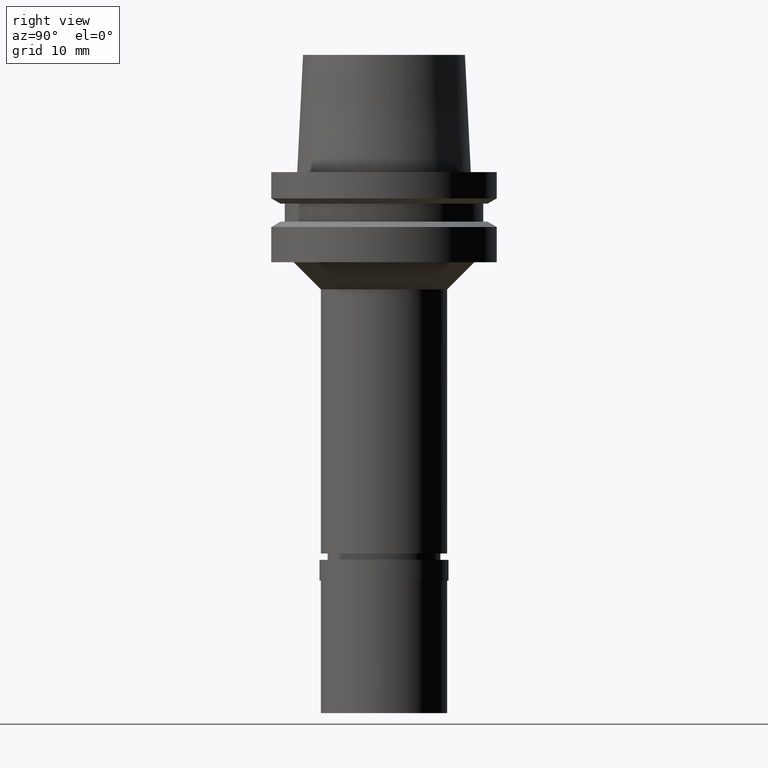
[diagram: clean part render]
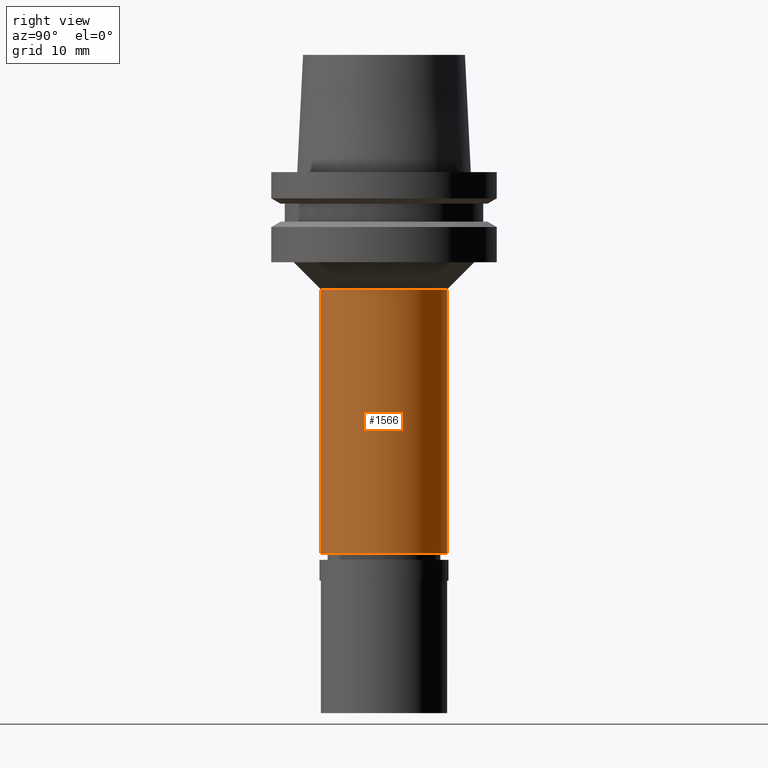
[diagram: same view with one face highlighted and labeled with its STEP entity id]
A machine part, right view. The second image highlights one B-rep face of the part: STEP entity #1566.
In plain terms, the highlighted cylindrical surface (partial cylindrical patch) has radius 7 mm, axis along (0, 0, 1).
Its self-contained STEP definition (entity closure, byte-faithful):
#47 = LINE ( 'NONE', #1349, #1416 ) ;
#48 = VERTEX_POINT ( 'NONE', #281 ) ;
#90 = DIRECTION ( 'NONE',  ( 0.0000000000000000000, 0.0000000000000000000, -1.000000000000000000 ) ) ;
#157 = EDGE_LOOP ( 'NONE', ( #1719, #2120, #2007, #2089 ) ) ;
#198 = CIRCLE ( 'NONE', #331, 7.000000000000000000 ) ;
#281 = CARTESIAN_POINT ( 'NONE',  ( 0.0000000000000000000, 7.000000000000000000, -42.29999999999999716 ) ) ;
#290 = CARTESIAN_POINT ( 'NONE',  ( 0.0000000000000000000, 0.0000000000000000000, -13.00000000000000000 ) ) ;
#331 = AXIS2_PLACEMENT_3D ( 'NONE', #290, #1309, #1713 ) ;
#340 = CYLINDRICAL_SURFACE ( 'NONE', #1728, 7.000000000000000000 ) ;
#352 = DIRECTION ( 'NONE',  ( 0.0000000000000000000, 1.000000000000000000, 0.0000000000000000000 ) ) ;
#534 = DIRECTION ( 'NONE',  ( 0.0000000000000000000, -1.000000000000000000, 0.0000000000000000000 ) ) ;
#771 = CARTESIAN_POINT ( 'NONE',  ( 0.0000000000000000000, 0.0000000000000000000, -59.45000000000000284 ) ) ;
#786 = VERTEX_POINT ( 'NONE', #1781 ) ;
#1136 = VERTEX_POINT ( 'NONE', #2485 ) ;
#1149 = LINE ( 'NONE', #1568, #1541 ) ;
#1309 = DIRECTION ( 'NONE',  ( 0.0000000000000000000, 0.0000000000000000000, -1.000000000000000000 ) ) ;
#1338 = EDGE_CURVE ( 'NONE', #786, #2578, #47, .T. ) ;
#1349 = CARTESIAN_POINT ( 'NONE',  ( 0.0000000000000000000, -7.000000000000000000, -13.00000000000000000 ) ) ;
#1398 = CARTESIAN_POINT ( 'NONE',  ( 0.0000000000000000000, -7.000000000000000000, -42.29999999999999716 ) ) ;
#1416 = VECTOR ( 'NONE', #1564, 1000.000000000000000 ) ;
#1541 = VECTOR ( 'NONE', #90, 1000.000000000000000 ) ;
#1564 = DIRECTION ( 'NONE',  ( 0.0000000000000000000, 0.0000000000000000000, -1.000000000000000000 ) ) ;
#1566 = ADVANCED_FACE ( 'NONE', ( #2215 ), #340, .T. ) ;
#1568 = CARTESIAN_POINT ( 'NONE',  ( 0.0000000000000000000, 7.000000000000000000, -13.00000000000000000 ) ) ;
#1600 = DIRECTION ( 'NONE',  ( 0.0000000000000000000, 0.0000000000000000000, 1.000000000000000000 ) ) ;
#1713 = DIRECTION ( 'NONE',  ( 0.0000000000000000000, 1.000000000000000000, 0.0000000000000000000 ) ) ;
#1719 = ORIENTED_EDGE ( 'NONE', *, *, #1910, .T. ) ;
#1728 = AXIS2_PLACEMENT_3D ( 'NONE', #771, #1600, #352 ) ;
#1773 = AXIS2_PLACEMENT_3D ( 'NONE', #1949, #2425, #534 ) ;
#1781 = CARTESIAN_POINT ( 'NONE',  ( 0.0000000000000000000, -7.000000000000000000, -13.00000000000000000 ) ) ;
#1910 = EDGE_CURVE ( 'NONE', #1136, #786, #198, .T. ) ;
#1949 = CARTESIAN_POINT ( 'NONE',  ( 0.0000000000000000000, 0.0000000000000000000, -42.29999999999999716 ) ) ;
#2007 = ORIENTED_EDGE ( 'NONE', *, *, #2197, .T. ) ;
#2089 = ORIENTED_EDGE ( 'NONE', *, *, #2380, .F. ) ;
#2120 = ORIENTED_EDGE ( 'NONE', *, *, #1338, .T. ) ;
#2197 = EDGE_CURVE ( 'NONE', #2578, #48, #2339, .T. ) ;
#2215 = FACE_OUTER_BOUND ( 'NONE', #157, .T. ) ;
#2339 = CIRCLE ( 'NONE', #1773, 7.000000000000000000 ) ;
#2380 = EDGE_CURVE ( 'NONE', #1136, #48, #1149, .T. ) ;
#2425 = DIRECTION ( 'NONE',  ( 0.0000000000000000000, 0.0000000000000000000, 1.000000000000000000 ) ) ;
#2485 = CARTESIAN_POINT ( 'NONE',  ( 0.0000000000000000000, 7.000000000000000000, -13.00000000000000000 ) ) ;
#2578 = VERTEX_POINT ( 'NONE', #1398 ) ;